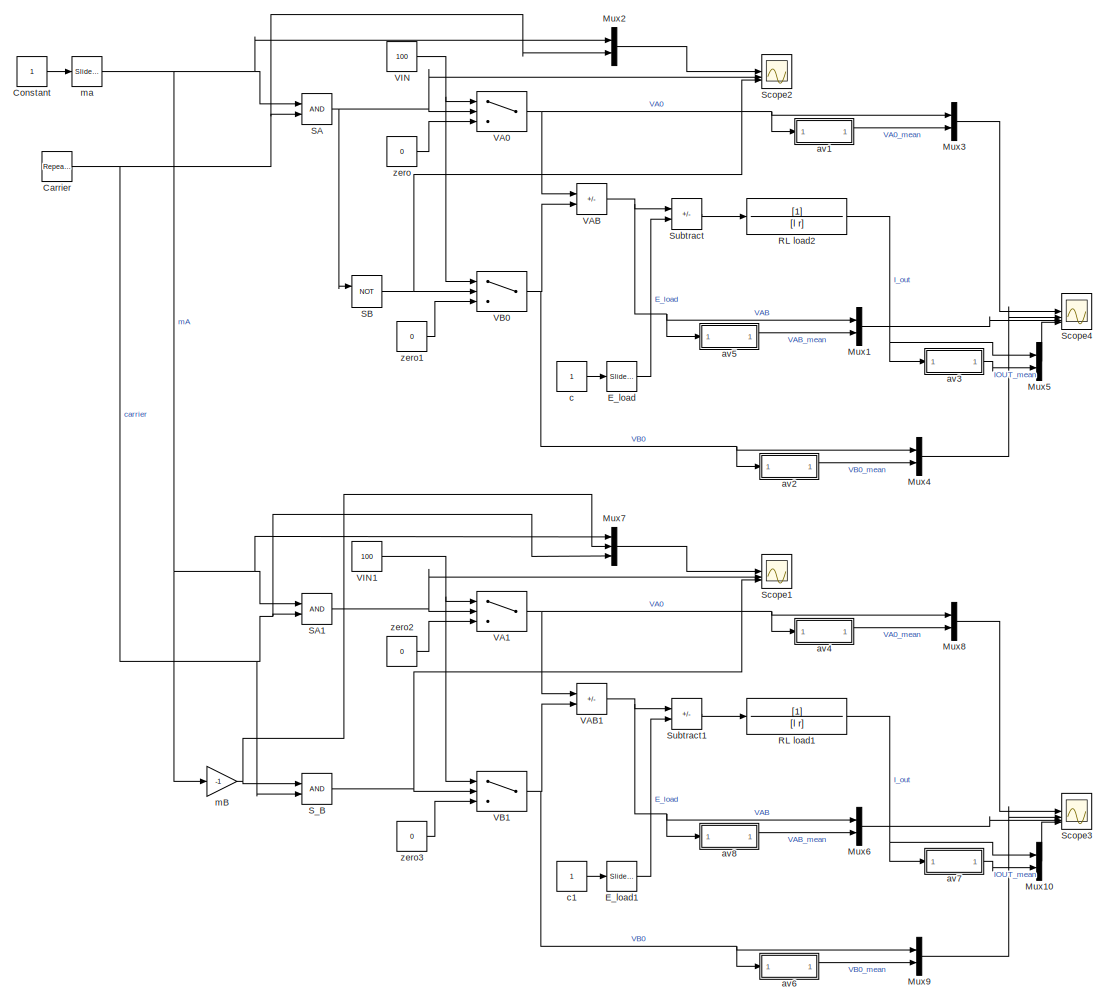
[diagram: root canvas - part 1/2, most of the canvas]
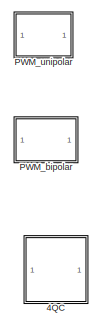
[diagram: root canvas - part 2/2, bottom left region]
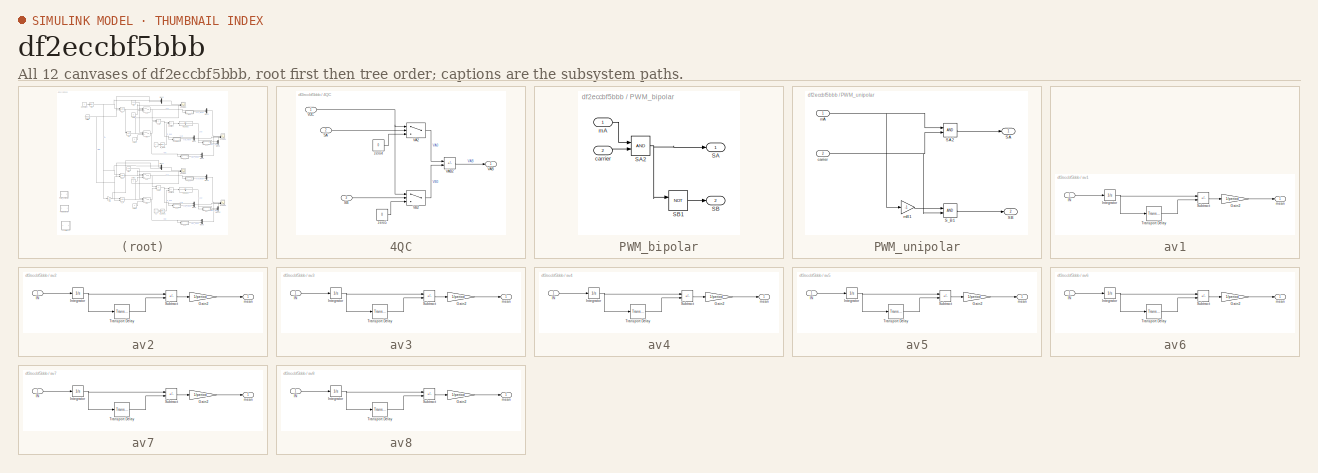
[diagram: thumbnail index - all 12 canvases of the model, root first then tree order]
MODEL slx_df2eccbf5bbb
KIND model
CONFIG AbsTol = auto
CONFIG EnableMultiTasking = off
CONFIG FixedStep = auto
CONFIG MaxStep = 1e-5
CONFIG MinStep = auto
CONFIG RelTol = 1e-3
CONFIG SampleTimeConstraint = Unconstrained
CONFIG SolverName = VariableStepAuto
CONFIG StartTime = 0.0
CONFIG StopTime = 10.0
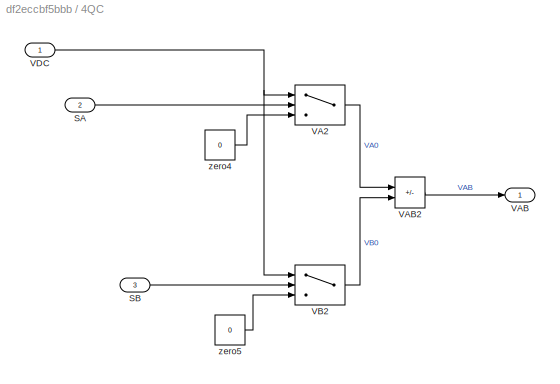
BLOCK [SubSystem] 4QC
BLOCK [Inport] 4QC/SA
  Port = 2
BLOCK [Inport] 4QC/SB
  Port = 3
BLOCK [Switch] 4QC/VA2
  Criteria = u2 > Threshold
  InputSameDT = off
  SaturateOnIntegerOverflow = off
BLOCK [Outport] 4QC/VAB
BLOCK [Sum] 4QC/VAB2
  IconShape = rectangular
  Inputs = +-
BLOCK [Switch] 4QC/VB2
  Criteria = u2 > Threshold
  InputSameDT = off
  SaturateOnIntegerOverflow = off
BLOCK [Inport] 4QC/VDC
BLOCK [Constant] 4QC/zero4
  Value = 0
BLOCK [Constant] 4QC/zero5
  Value = 0
BLOCK [Reference] Carrier   REF=simulink/Sources/Repeating
Sequence
  SourceBlock = simulink/Sources/Repeating\nSequence
  SourceType = Repeating table
BLOCK [Constant] Constant
BLOCK [Reference] E_load  REF=simulink/Math
Operations/Slider
Gain
  SourceBlock = simulink/Math\nOperations/Slider\nGain
  SourceType = Slider Gain
BLOCK [Reference] E_load1  REF=simulink/Math
Operations/Slider
Gain
  SourceBlock = simulink/Math\nOperations/Slider\nGain
  SourceType = Slider Gain
BLOCK [Mux] Mux1
  DisplayOption = bar
  Inputs = 2
BLOCK [Mux] Mux10
  DisplayOption = bar
  Inputs = 2
BLOCK [Mux] Mux2
  DisplayOption = bar
  Inputs = 2
BLOCK [Mux] Mux3
  DisplayOption = bar
  Inputs = 2
BLOCK [Mux] Mux4
  DisplayOption = bar
  Inputs = 2
BLOCK [Mux] Mux5
  DisplayOption = bar
  Inputs = 2
BLOCK [Mux] Mux6
  DisplayOption = bar
  Inputs = 2
BLOCK [Mux] Mux7
  DisplayOption = bar
  Inputs = 3
BLOCK [Mux] Mux8
  DisplayOption = bar
  Inputs = 2
BLOCK [Mux] Mux9
  DisplayOption = bar
  Inputs = 2
BLOCK [SubSystem] PWM_bipolar
BLOCK [Outport] PWM_bipolar/SA
BLOCK [RelationalOperator] PWM_bipolar/SA2
  InputSameDT = off
  OutDataTypeStr = boolean
  RndMeth = Simplest
BLOCK [Outport] PWM_bipolar/SB
  Port = 2
BLOCK [Logic] PWM_bipolar/SB1
  AllPortsSameDT = off
  Operator = NOT
  OutDataTypeStr = boolean
BLOCK [Inport] PWM_bipolar/carrier
  Port = 2
BLOCK [Inport] PWM_bipolar/mA
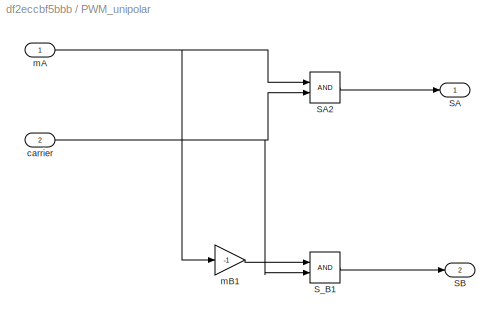
BLOCK [SubSystem] PWM_unipolar
BLOCK [Outport] PWM_unipolar/SA
BLOCK [RelationalOperator] PWM_unipolar/SA2
  InputSameDT = off
  OutDataTypeStr = boolean
  RndMeth = Simplest
BLOCK [Outport] PWM_unipolar/SB
  Port = 2
BLOCK [RelationalOperator] PWM_unipolar/S_B1
  InputSameDT = off
  OutDataTypeStr = boolean
  RndMeth = Simplest
BLOCK [Inport] PWM_unipolar/carrier
  Port = 2
BLOCK [Inport] PWM_unipolar/mA
BLOCK [Gain] PWM_unipolar/mB1
  Gain = -1
BLOCK [TransferFcn] RL load1
  Denominator = [l r]
BLOCK [TransferFcn] RL load2
  Denominator = [l r]
BLOCK [RelationalOperator] SA
  InputSameDT = off
  OutDataTypeStr = boolean
  RndMeth = Simplest
BLOCK [RelationalOperator] SA1
  InputSameDT = off
  OutDataTypeStr = boolean
  RndMeth = Simplest
BLOCK [Logic] SB
  AllPortsSameDT = off
  Operator = NOT
  OutDataTypeStr = boolean
BLOCK [RelationalOperator] S_B
  InputSameDT = off
  OutDataTypeStr = boolean
  RndMeth = Simplest
BLOCK [Scope] Scope1
  Floating = off
  NumInputPorts = 3
  ScopeSpecificationString = Simulink.scopes.TimeScopeBlockCfg('CurrentConfiguration', extmgr.ConfigurationSet(extmgr.Configuration('Core','General UI',true),extmgr.Configuration('Core','Source UI',true),extmgr.Configuration('Sources','WiredSimulink',true,'DataLoggingVariableName','ScopeData2'),extmgr.Configuration('Visuals','Time Domain',true,'SerializedDisplays',{struct('MinYLimReal','-1.24768','MaxYLimReal','1.22912','YLab...<+3313ch>
BLOCK [Scope] Scope2
  Floating = off
  NumInputPorts = 3
  ScopeSpecificationString = Simulink.scopes.TimeScopeBlockCfg('CurrentConfiguration', extmgr.ConfigurationSet(extmgr.Configuration('Core','General UI',true),extmgr.Configuration('Core','Source UI',true),extmgr.Configuration('Sources','WiredSimulink',true),extmgr.Configuration('Visuals','Time Domain',true,'SerializedDisplays',{struct('MinYLimReal','-1.24768','MaxYLimReal','1.22912','YLabelReal','[pu]','MinYLimMag','0.00000','...<+3134ch>
BLOCK [Scope] Scope3
  Floating = off
  NumInputPorts = 4
  ScopeSpecificationString = Simulink.scopes.TimeScopeBlockCfg('CurrentConfiguration', extmgr.ConfigurationSet(extmgr.Configuration('Core','General UI',true),extmgr.Configuration('Core','Source UI',true),extmgr.Configuration('Sources','WiredSimulink',true,'DataLoggingVariableName','ScopeData3'),extmgr.Configuration('Visuals','Time Domain',true,'SerializedDisplays',{struct('MinYLimReal','-122.5','MaxYLimReal','112.5','YLabelRe...<+5305ch>
BLOCK [Scope] Scope4
  Floating = off
  NumInputPorts = 4
  ScopeSpecificationString = Simulink.scopes.TimeScopeBlockCfg('CurrentConfiguration', extmgr.ConfigurationSet(extmgr.Configuration('Core','General UI',true),extmgr.Configuration('Core','Source UI',true),extmgr.Configuration('Sources','WiredSimulink',true,'DataLoggingVariableName','ScopeData1'),extmgr.Configuration('Visuals','Time Domain',true,'SerializedDisplays',{struct('MinYLimReal','-122.5','MaxYLimReal','112.5','YLabelRe...<+5279ch>
BLOCK [Sum] Subtract
  IconShape = rectangular
  Inputs = +-
BLOCK [Sum] Subtract1
  IconShape = rectangular
  Inputs = +-
BLOCK [Switch] VA0
  Criteria = u2 > Threshold
  InputSameDT = off
  SaturateOnIntegerOverflow = off
BLOCK [Switch] VA1
  Criteria = u2 > Threshold
  InputSameDT = off
  SaturateOnIntegerOverflow = off
BLOCK [Sum] VAB
  IconShape = rectangular
  Inputs = +-
BLOCK [Sum] VAB1
  IconShape = rectangular
  Inputs = +-
BLOCK [Switch] VB0
  Criteria = u2 > Threshold
  InputSameDT = off
  SaturateOnIntegerOverflow = off
BLOCK [Switch] VB1
  Criteria = u2 > Threshold
  InputSameDT = off
  SaturateOnIntegerOverflow = off
BLOCK [Constant] VIN
  Value = 100
BLOCK [Constant] VIN1
  Value = 100
BLOCK [SubSystem] av1
BLOCK [Gain] av1/Gain2
  Gain = 1/period
BLOCK [Inport] av1/IN
BLOCK [Integrator] av1/Integrator
BLOCK [Sum] av1/Subtract
  IconShape = rectangular
  Inputs = +-
BLOCK [TransportDelay] av1/Transport Delay
  DelayTime = period
BLOCK [Outport] av1/mean
BLOCK [SubSystem] av2
BLOCK [Gain] av2/Gain2
  Gain = 1/period
BLOCK [Inport] av2/IN
BLOCK [Integrator] av2/Integrator
BLOCK [Sum] av2/Subtract
  IconShape = rectangular
  Inputs = +-
BLOCK [TransportDelay] av2/Transport Delay
  DelayTime = period
BLOCK [Outport] av2/mean
BLOCK [SubSystem] av3
BLOCK [Gain] av3/Gain2
  Gain = 1/period
BLOCK [Inport] av3/IN
BLOCK [Integrator] av3/Integrator
BLOCK [Sum] av3/Subtract
  IconShape = rectangular
  Inputs = +-
BLOCK [TransportDelay] av3/Transport Delay
  DelayTime = period
BLOCK [Outport] av3/mean
BLOCK [SubSystem] av4
BLOCK [Gain] av4/Gain2
  Gain = 1/period
BLOCK [Inport] av4/IN
BLOCK [Integrator] av4/Integrator
BLOCK [Sum] av4/Subtract
  IconShape = rectangular
  Inputs = +-
BLOCK [TransportDelay] av4/Transport Delay
  DelayTime = period
BLOCK [Outport] av4/mean
BLOCK [SubSystem] av5
BLOCK [Gain] av5/Gain2
  Gain = 1/period
BLOCK [Inport] av5/IN
BLOCK [Integrator] av5/Integrator
BLOCK [Sum] av5/Subtract
  IconShape = rectangular
  Inputs = +-
BLOCK [TransportDelay] av5/Transport Delay
  DelayTime = period
BLOCK [Outport] av5/mean
BLOCK [SubSystem] av6
BLOCK [Gain] av6/Gain2
  Gain = 1/period
BLOCK [Inport] av6/IN
BLOCK [Integrator] av6/Integrator
BLOCK [Sum] av6/Subtract
  IconShape = rectangular
  Inputs = +-
BLOCK [TransportDelay] av6/Transport Delay
  DelayTime = period
BLOCK [Outport] av6/mean
BLOCK [SubSystem] av7
BLOCK [Gain] av7/Gain2
  Gain = 1/period
BLOCK [Inport] av7/IN
BLOCK [Integrator] av7/Integrator
BLOCK [Sum] av7/Subtract
  IconShape = rectangular
  Inputs = +-
BLOCK [TransportDelay] av7/Transport Delay
  DelayTime = period
BLOCK [Outport] av7/mean
BLOCK [SubSystem] av8
BLOCK [Gain] av8/Gain2
  Gain = 1/period
BLOCK [Inport] av8/IN
BLOCK [Integrator] av8/Integrator
BLOCK [Sum] av8/Subtract
  IconShape = rectangular
  Inputs = +-
BLOCK [TransportDelay] av8/Transport Delay
  DelayTime = period
BLOCK [Outport] av8/mean
BLOCK [Constant] c
BLOCK [Constant] c1
BLOCK [Gain] mB
  Gain = -1
BLOCK [Reference] ma  REF=simulink/Math
Operations/Slider
Gain
  SourceBlock = simulink/Math\nOperations/Slider\nGain
  SourceType = Slider Gain
BLOCK [Constant] zero
  Value = 0
BLOCK [Constant] zero1
  Value = 0
BLOCK [Constant] zero2
  Value = 0
BLOCK [Constant] zero3
  Value = 0
LINE 4QC/SA:1 -> 4QC/VA2:2
LINE 4QC/SB:1 -> 4QC/VB2:2
LINE 4QC/VA2:1 -> 4QC/VAB2:1
LINE 4QC/VAB2:1 -> 4QC/VAB:1
LINE 4QC/VB2:1 -> 4QC/VAB2:2
NET 4QC/VDC:1 -> 4QC/VA2:1, 4QC/VB2:1
LINE 4QC/zero4:1 -> 4QC/VA2:3
LINE 4QC/zero5:1 -> 4QC/VB2:3
NET Carrier :1 -> Mux2:2, Mux7:3, SA1:2, SA:2, S_B:2
LINE Constant:1 -> ma:1
LINE E_load1:1 -> Subtract1:2
LINE E_load:1 -> Subtract:2
LINE Mux10:1 -> Scope3:4
LINE Mux1:1 -> Scope4:3
LINE Mux2:1 -> Scope2:1
LINE Mux3:1 -> Scope4:1
LINE Mux4:1 -> Scope4:2
LINE Mux5:1 -> Scope4:4
LINE Mux6:1 -> Scope3:3
LINE Mux7:1 -> Scope1:1
LINE Mux8:1 -> Scope3:1
LINE Mux9:1 -> Scope3:2
NET PWM_bipolar/SA2:1 -> PWM_bipolar/SA:1, PWM_bipolar/SB1:1
LINE PWM_bipolar/SB1:1 -> PWM_bipolar/SB:1
LINE PWM_bipolar/carrier:1 -> PWM_bipolar/SA2:2
LINE PWM_bipolar/mA:1 -> PWM_bipolar/SA2:1
LINE PWM_unipolar/SA2:1 -> PWM_unipolar/SA:1
LINE PWM_unipolar/S_B1:1 -> PWM_unipolar/SB:1
NET PWM_unipolar/carrier:1 -> PWM_unipolar/SA2:2, PWM_unipolar/S_B1:2
NET PWM_unipolar/mA:1 -> PWM_unipolar/SA2:1, PWM_unipolar/mB1:1
LINE PWM_unipolar/mB1:1 -> PWM_unipolar/S_B1:1
NET RL load1:1 -> Mux10:1, av7:1
NET RL load2:1 -> Mux5:1, av3:1
NET SA1:1 -> Scope1:2, VA1:2
NET SA:1 -> SB:1, Scope2:2, VA0:2
NET SB:1 -> Scope2:3, VB0:2
NET S_B:1 -> Scope1:3, VB1:2
LINE Subtract1:1 -> RL load1:1
LINE Subtract:1 -> RL load2:1
NET VA0:1 -> Mux3:1, VAB:1, av1:1
NET VA1:1 -> Mux8:1, VAB1:1, av4:1
NET VAB1:1 -> Mux6:1, Subtract1:1, av8:1
NET VAB:1 -> Mux1:1, Subtract:1, av5:1
NET VB0:1 -> Mux4:1, VAB:2, av2:1
NET VB1:1 -> Mux9:1, VAB1:2, av6:1
NET VIN1:1 -> VA1:1, VB1:1
NET VIN:1 -> VA0:1, VB0:1
LINE av1/Gain2:1 -> av1/mean:1
LINE av1/IN:1 -> av1/Integrator:1
NET av1/Integrator:1 -> av1/Subtract:1, av1/Transport Delay:1
LINE av1/Subtract:1 -> av1/Gain2:1
LINE av1/Transport Delay:1 -> av1/Subtract:2
LINE av1:1 -> Mux3:2
LINE av2/Gain2:1 -> av2/mean:1
LINE av2/IN:1 -> av2/Integrator:1
NET av2/Integrator:1 -> av2/Subtract:1, av2/Transport Delay:1
LINE av2/Subtract:1 -> av2/Gain2:1
LINE av2/Transport Delay:1 -> av2/Subtract:2
LINE av2:1 -> Mux4:2
LINE av3/Gain2:1 -> av3/mean:1
LINE av3/IN:1 -> av3/Integrator:1
NET av3/Integrator:1 -> av3/Subtract:1, av3/Transport Delay:1
LINE av3/Subtract:1 -> av3/Gain2:1
LINE av3/Transport Delay:1 -> av3/Subtract:2
LINE av3:1 -> Mux5:2
LINE av4/Gain2:1 -> av4/mean:1
LINE av4/IN:1 -> av4/Integrator:1
NET av4/Integrator:1 -> av4/Subtract:1, av4/Transport Delay:1
LINE av4/Subtract:1 -> av4/Gain2:1
LINE av4/Transport Delay:1 -> av4/Subtract:2
LINE av4:1 -> Mux8:2
LINE av5/Gain2:1 -> av5/mean:1
LINE av5/IN:1 -> av5/Integrator:1
NET av5/Integrator:1 -> av5/Subtract:1, av5/Transport Delay:1
LINE av5/Subtract:1 -> av5/Gain2:1
LINE av5/Transport Delay:1 -> av5/Subtract:2
LINE av5:1 -> Mux1:2
LINE av6/Gain2:1 -> av6/mean:1
LINE av6/IN:1 -> av6/Integrator:1
NET av6/Integrator:1 -> av6/Subtract:1, av6/Transport Delay:1
LINE av6/Subtract:1 -> av6/Gain2:1
LINE av6/Transport Delay:1 -> av6/Subtract:2
LINE av6:1 -> Mux9:2
LINE av7/Gain2:1 -> av7/mean:1
LINE av7/IN:1 -> av7/Integrator:1
NET av7/Integrator:1 -> av7/Subtract:1, av7/Transport Delay:1
LINE av7/Subtract:1 -> av7/Gain2:1
LINE av7/Transport Delay:1 -> av7/Subtract:2
LINE av7:1 -> Mux10:2
LINE av8/Gain2:1 -> av8/mean:1
LINE av8/IN:1 -> av8/Integrator:1
NET av8/Integrator:1 -> av8/Subtract:1, av8/Transport Delay:1
LINE av8/Subtract:1 -> av8/Gain2:1
LINE av8/Transport Delay:1 -> av8/Subtract:2
LINE av8:1 -> Mux6:2
LINE c1:1 -> E_load1:1
LINE c:1 -> E_load:1
NET mB:1 -> Mux7:2, S_B:1
NET ma:1 -> Mux2:1, Mux7:1, SA1:1, SA:1, mB:1
LINE zero1:1 -> VB0:3
LINE zero2:1 -> VA1:3
LINE zero3:1 -> VB1:3
LINE zero:1 -> VA0:3
note: NET lines group one-source signal fan-out (src -> all destinations, sorted); 1:1 wires keep LINE
